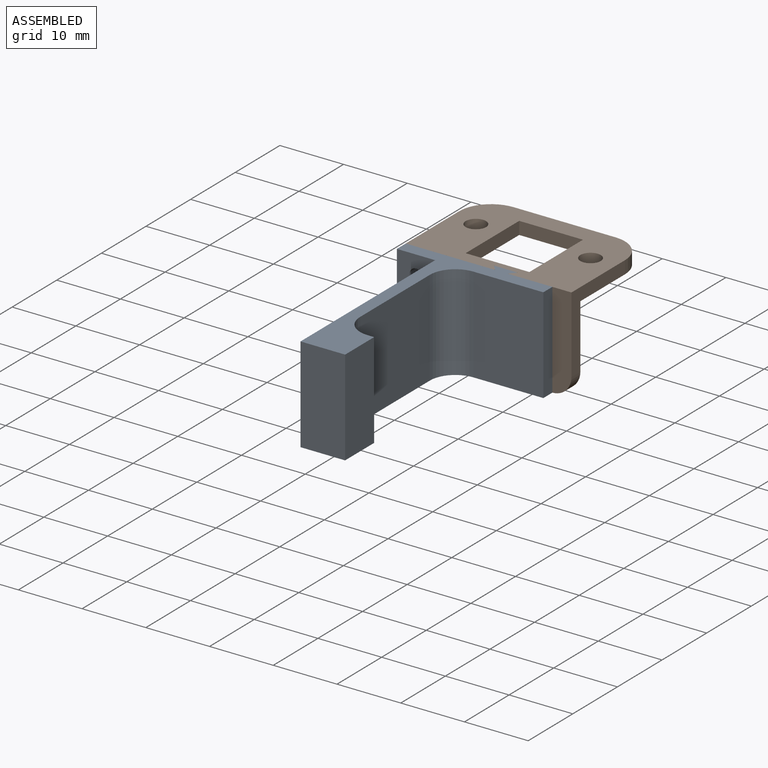
[diagram: assembled view]
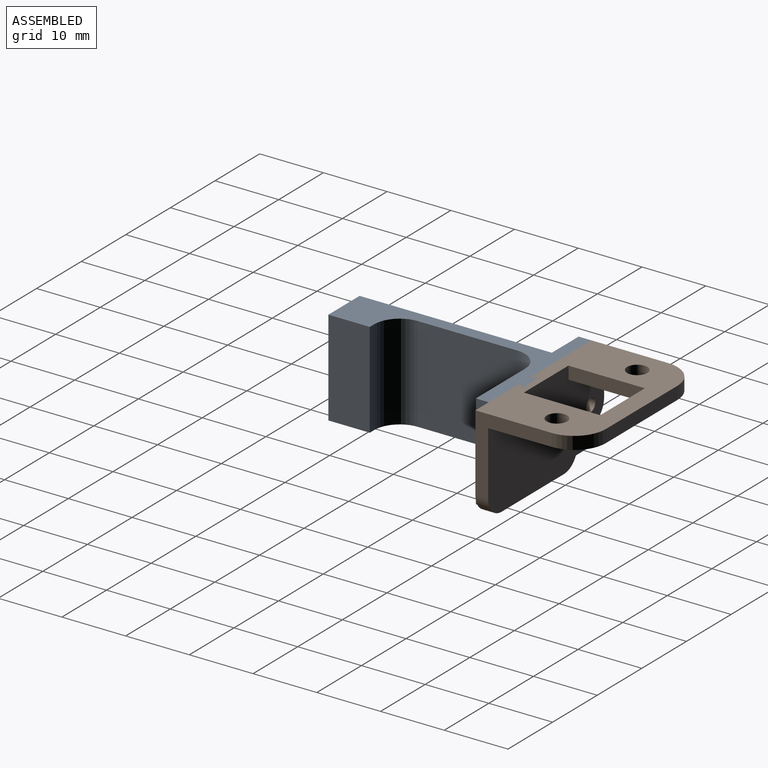
[diagram: assembled view, second angle]
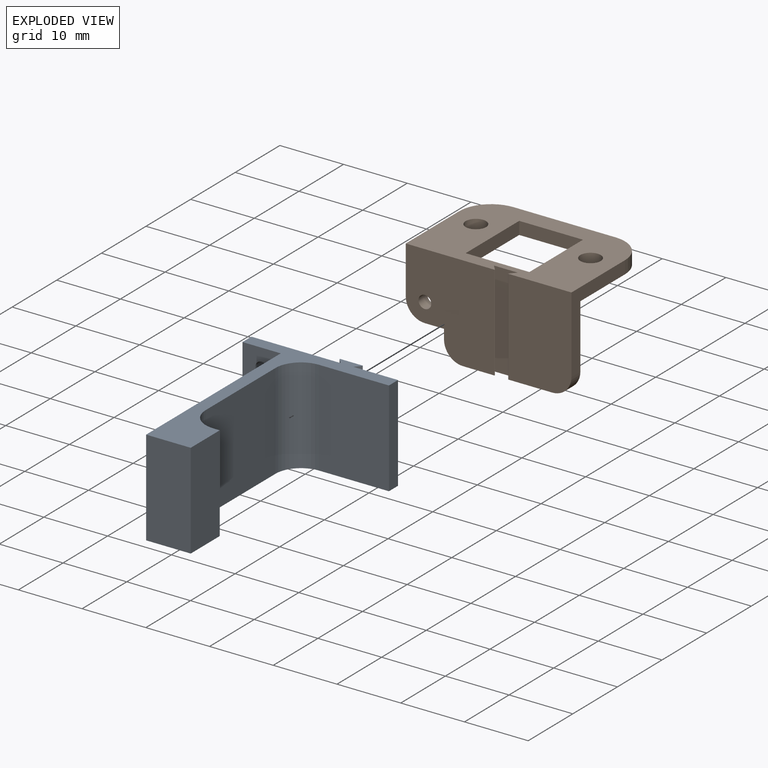
[diagram: exploded view]
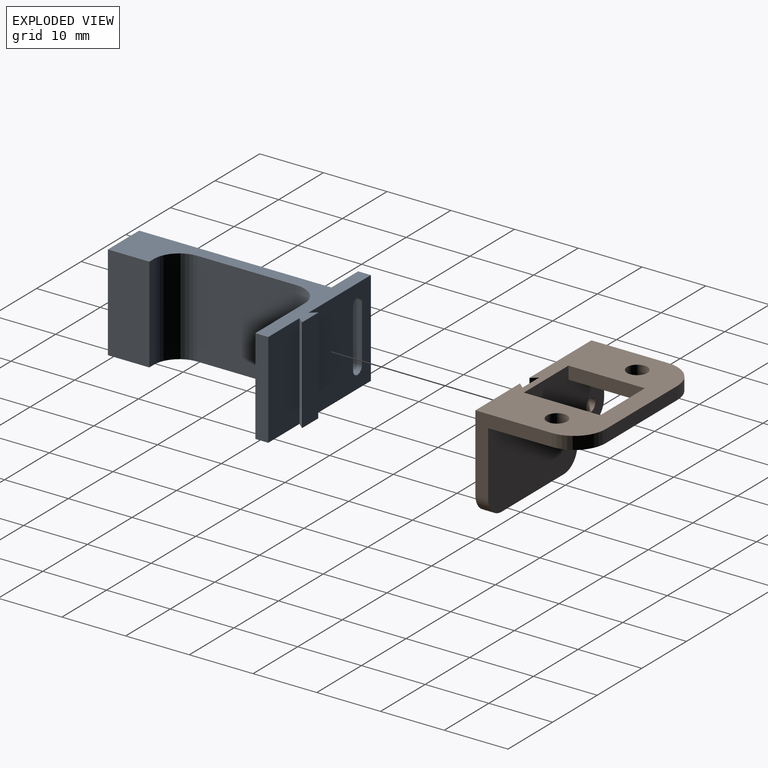
[diagram: exploded view, second angle]
ASSEMBLY  parts=2 mates=2
PART A: 24 faces, bbox 23x33.2x15 mm
  f0: plane 15x7.01mm, normal (0,1,0), area 105.1mm2, adj f4,f5,f19,f23
  f1: plane 15x11mm, normal (0,-1,0), area 165mm2, adj f4,f5,f11,f23
  f2: plane 15x13.99mm, normal (0,1,0), area 188.8mm2, adj f4,f5,f13,f14,f15,f16,f17,f18
  f3: plane 30.17x15mm, normal (-1,0,0), area 452.5mm2, adj f4,f5,f6,f12
  f4: plane 33.17x23mm, normal (0,0,1), area 148.9mm2, adj f0,f1,f2,f3,f6,f7,f8,f9
  f5: plane 33.17x23mm, normal (0,0,-1), area 148.9mm2, adj f0,f1,f2,f3,f6,f7,f8,f9
  f6: plane 15x7mm, normal (0,-1,0), area 105mm2, adj f3,f4,f5,f9
  f7: plane 15.64x15mm, normal (1,0,0), area 234.6mm2, adj f4,f5,f10,f11
  f8: plane 15x1mm, normal (0,1,0), area 15mm2, adj f4,f5,f9,f10
  f9: plane 15x6.5mm, normal (1,0,0), area 97.5mm2, adj f4,f5,f6,f8
  f10: cylinder r=4mm len=15mm, axis (0,0,-1), area 94.2mm2, adj f4,f5,f7,f8
  f11: cylinder r=4mm len=15mm, axis (0,0,-1), area 94.2mm2, adj f1,f4,f5,f7
  f12: plane 15x6mm, normal (0,-1,0), area 68.9mm2, adj f3,f4,f5,f13,f14,f15,f16,f17
  f13: plane 15x2mm, normal (-1,0,0), area 30mm2, adj f2,f4,f5,f12
  f14: plane 9x2mm, normal (1,0,0), area 18mm2, adj f2,f12,f15,f17
  f15: cylinder r=1mm len=2mm, axis (0,1,0), area 6.3mm2, adj f2,f12,f14,f16
  f16: plane 9x2mm, normal (-1,0,0), area 18mm2, adj f2,f12,f15,f17
  f17: cylinder r=1mm len=2mm, axis (0,1,0), area 6.3mm2, adj f2,f12,f14,f16
  f18: plane 15x0.92mm, normal (-0.76,-0.65,0), area 18.2mm2, adj f2,f4,f5,f21
  f19: plane 15x0.92mm, normal (0.76,-0.65,0), area 18.2mm2, adj f0,f4,f5,f22
  f20: plane 15x3.51mm, normal (0,1,0), area 52.6mm2, adj f4,f5,f21,f22
  f21: cylinder r=0.05mm len=15mm, axis (0,0,1), area 1.7mm2, adj f4,f5,f18,f20
  f22: cylinder r=0.05mm len=15mm, axis (0,0,-1), area 1.7mm2, adj f4,f5,f19,f20
  f23: plane 15x2.03mm, normal (1,0,0), area 30.4mm2, adj f0,f1,f4,f5
PART B: 27 faces, bbox 26x17x15 mm
  f0: plane 26x15mm, normal (0,0,-1), area 243.2mm2, adj f2,f8,f15,f16,f17,f18,f19,f20
  f1: plane 26x17mm, normal (0,0,1), area 292.3mm2, adj f2,f3,f4,f8,f9,f10,f11,f12
  f2: plane 26x15mm, normal (0,1,0), area 322.1mm2, adj f0,f1,f5,f6,f7,f8,f14,f16
  f3: plane 15x13.89mm, normal (0,-1,0), area 174.4mm2, adj f1,f5,f6,f7,f8,f12,f14,f22
  f4: plane 15x9.89mm, normal (0,-1,0), area 146.4mm2, adj f1,f6,f13,f16,f21
  f5: plane 2x1.5mm, normal (-1,0,0), area 3mm2, adj f2,f3,f7,f23
  f6: plane 14x2mm, normal (0,0,-1), area 25.1mm2, adj f2,f3,f4,f9,f10,f11,f12,f13
  f7: plane 3x2mm, normal (0,0,-1), area 6mm2, adj f2,f3,f5,f22
  f8: plane 12x7.5mm, normal (-1,0,0), area 35mm2, adj f0,f1,f2,f3,f20,f22
  f9: plane 15x0.92mm, normal (-0.76,0.65,0), area 18.2mm2, adj f1,f6,f11,f13
  f10: plane 15x0.92mm, normal (0.76,0.65,0), area 18.2mm2, adj f1,f6,f11,f12
  f11: plane 15x3.73mm, normal (0,-1,0), area 55.9mm2, adj f1,f6,f9,f10
  f12: cylinder r=0.05mm len=15mm, axis (0,0,1), area 1.7mm2, adj f1,f3,f6,f10
  f13: cylinder r=0.05mm len=15mm, axis (0,0,-1), area 1.7mm2, adj f1,f4,f6,f9
  f14: cylinder r=1mm len=2mm, axis (0,1,0), area 12.6mm2, adj f2,f3
  f15: plane 16x2mm, normal (0,1,0), area 32mm2, adj f0,f1,f19,f20
  f16: plane 12x12mm, normal (1,0,0), area 44mm2, adj f0,f1,f2,f4,f19,f21
  f17: cylinder r=1.6mm len=3.2mm, axis (0,0,1), area 20.1mm2, adj f0,f1
  f18: cylinder r=1.6mm len=3.2mm, axis (0,0,1), area 20.1mm2, adj f0,f1
  f19: cylinder r=5mm len=5mm, axis (0,0,1), area 15.7mm2, adj f0,f1,f15,f16
  f20: cylinder r=5mm len=5mm, axis (0,0,-1), area 15.7mm2, adj f0,f1,f8,f15
  f21: cylinder r=3mm len=3mm, axis (0,1,0), area 9.4mm2, adj f2,f4,f6,f16
  f22: cylinder r=3mm len=3mm, axis (0,1,0), area 9.4mm2, adj f2,f3,f7,f8
  f23: cylinder r=3mm len=3mm, axis (0,-1,0), area 9.4mm2, adj f2,f3,f5,f6
  f24: plane 12x2mm, normal (-1,0,0), area 24mm2, adj f0,f1,f2,f25
  f25: plane 10x2mm, normal (0,-1,0), area 20mm2, adj f0,f1,f24,f26
  f26: plane 12x2mm, normal (1,0,0), area 24mm2, adj f0,f1,f2,f25
PLACE A t=(-6.74,2.36,-5.83)mm
PLACE B t=(-6.74,-3.56,-5.83)mm
MATE planar B.f11 <-> A.f20  axis (0,-1,0) through (-5.12,7.99,9.17)mm
MATE slider A.f4 <-> B.f1  axis (0,0,1) through (-5.12,7.99,9.17)mm
